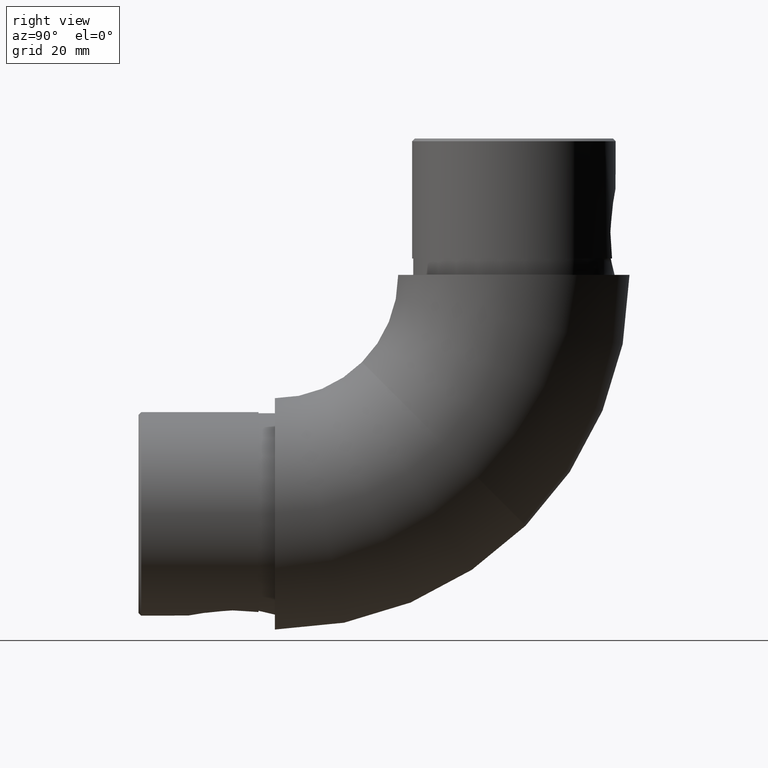
[diagram: clean part render]
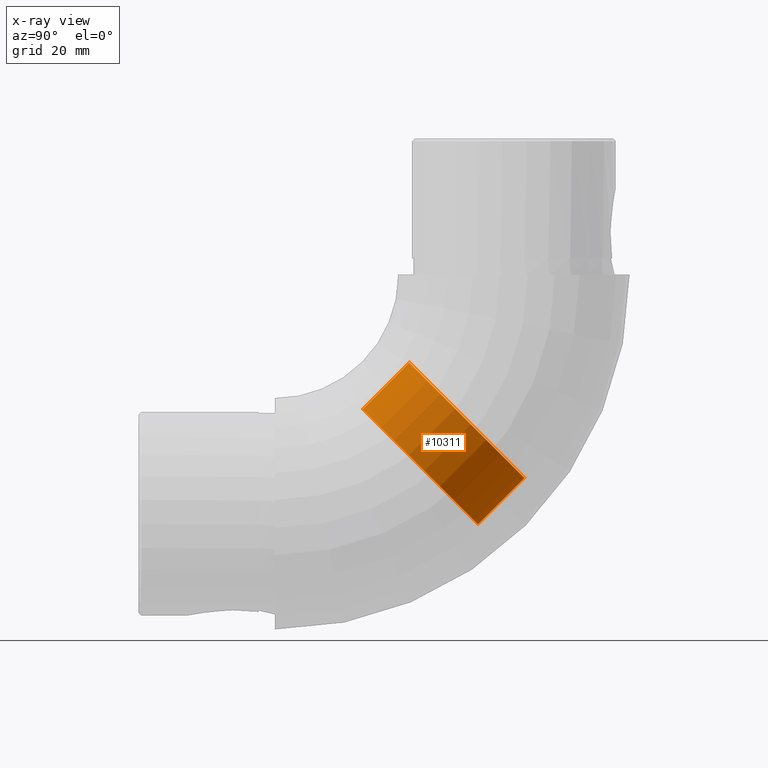
[diagram: x-ray — body ghosted, one internal face saturated and labeled with its STEP entity id]
A machine part, right view, then the same camera in x-ray: the body is ghosted and one INTERNAL B-rep face — a face not visible from any outside direction — is saturated and labeled: STEP entity #10311.
In plain terms, the highlighted cylindrical surface (bore or boss wall) has radius 15 mm, axis along (0, -0.7071, -0.7071).
Its self-contained STEP definition (entity closure, byte-faithful):
#877 = ORIENTED_EDGE ( 'NONE', *, *, #6883, .T. ) ;
#1677 = EDGE_LOOP ( 'NONE', ( #877 ) ) ;
#1955 = VERTEX_POINT ( 'NONE', #7449 ) ;
#2191 = DIRECTION ( 'NONE',  ( 0.0000000000000000000, 0.0000000000000000000, -1.000000000000000000 ) ) ;
#2340 = CYLINDRICAL_SURFACE ( 'NONE', #9816, 15.00000000000000000 ) ;
#5901 = VERTEX_POINT ( 'NONE', #12991 ) ;
#6107 = CIRCLE ( 'NONE', #9327, 15.00000000000000000 ) ;
#6287 = DIRECTION ( 'NONE',  ( -0.0000000000000000000, 1.000000000000000000, -0.0000000000000000000 ) ) ;
#6659 = CARTESIAN_POINT ( 'NONE',  ( 0.0000000000000000000, 6.000000000000026600, 0.0000000000000000000 ) ) ;
#6883 = EDGE_CURVE ( 'NONE', #5901, #5901, #6107, .T. ) ;
#7449 = CARTESIAN_POINT ( 'NONE',  ( 0.0000000000000000000, -5.999999999999973400, 15.00000000000000000 ) ) ;
#7491 = CARTESIAN_POINT ( 'NONE',  ( 0.0000000000000000000, -5.999999999999973400, 0.0000000000000000000 ) ) ;
#9136 = DIRECTION ( 'NONE',  ( -0.0000000000000000000, -1.000000000000000000, -0.0000000000000000000 ) ) ;
#9327 = AXIS2_PLACEMENT_3D ( 'NONE', #6659, #16346, #17727 ) ;
#9537 = FACE_OUTER_BOUND ( 'NONE', #14076, .T. ) ;
#9626 = ORIENTED_EDGE ( 'NONE', *, *, #10211, .T. ) ;
#9816 = AXIS2_PLACEMENT_3D ( 'NONE', #16194, #9136, #2191 ) ;
#10211 = EDGE_CURVE ( 'NONE', #1955, #1955, #16924, .T. ) ;
#10311 = ADVANCED_FACE ( 'NONE', ( #9537, #16051 ), #2340, .T. ) ;
#12615 = AXIS2_PLACEMENT_3D ( 'NONE', #7491, #6287, #15959 ) ;
#12991 = CARTESIAN_POINT ( 'NONE',  ( 0.0000000000000000000, 6.000000000000026600, 15.00000000000000000 ) ) ;
#14076 = EDGE_LOOP ( 'NONE', ( #9626 ) ) ;
#15959 = DIRECTION ( 'NONE',  ( 0.0000000000000000000, 0.0000000000000000000, 1.000000000000000000 ) ) ;
#16051 = FACE_OUTER_BOUND ( 'NONE', #1677, .T. ) ;
#16194 = CARTESIAN_POINT ( 'NONE',  ( 0.0000000000000000000, 6.500000000000000000, 0.0000000000000000000 ) ) ;
#16346 = DIRECTION ( 'NONE',  ( 0.0000000000000000000, -1.000000000000000000, 0.0000000000000000000 ) ) ;
#16924 = CIRCLE ( 'NONE', #12615, 15.00000000000000000 ) ;
#17727 = DIRECTION ( 'NONE',  ( 0.0000000000000000000, 0.0000000000000000000, 1.000000000000000000 ) ) ;